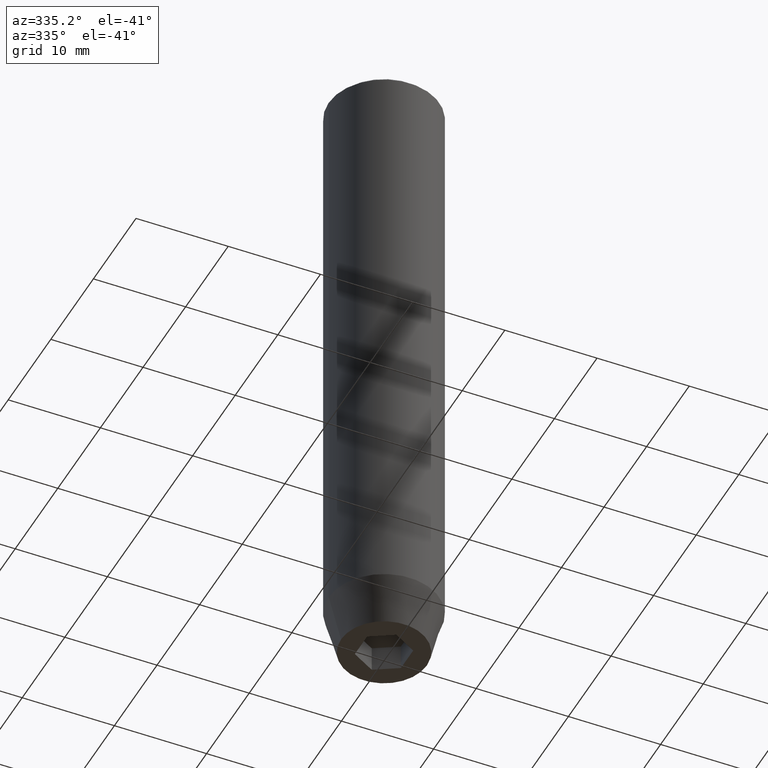
[diagram: clean part render]
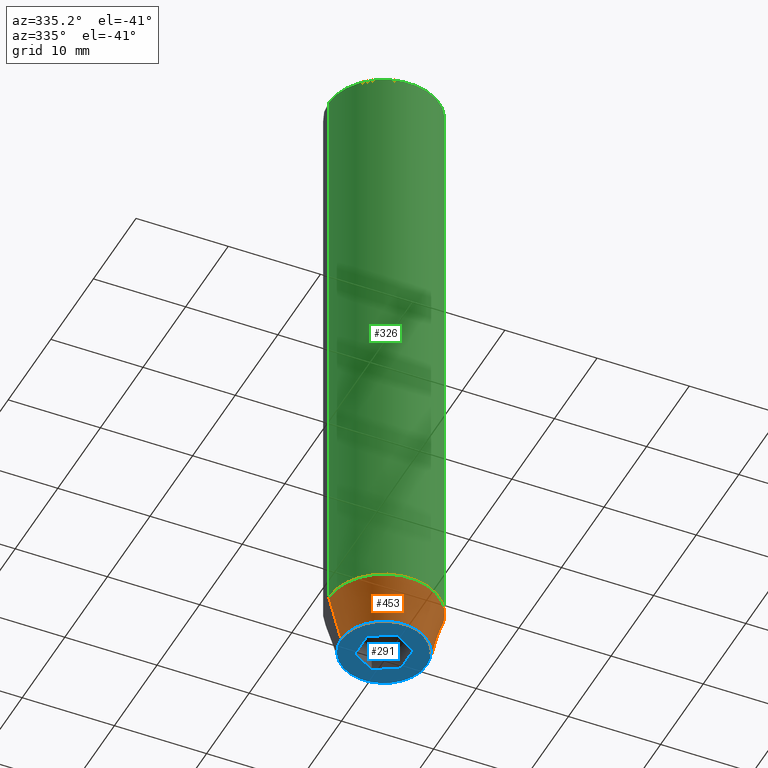
[diagram: same view with three faces highlighted in distinct colors, each labeled with its STEP entity id]
A machine part, auxiliary view with three faces highlighted in distinct colors.
Their STEP definitions:

[orange] entity #453 — the highlighted conical surface has half-angle 15 deg.
#10 = ORIENTED_EDGE ( 'NONE', *, *, #444, .F. ) ;
#12 = CIRCLE ( 'NONE', #198, 4.660254037844381081 ) ;
#24 = VECTOR ( 'NONE', #531, 1000.000000000000114 ) ;
#28 = VERTEX_POINT ( 'NONE', #214 ) ;
#32 = CARTESIAN_POINT ( 'NONE',  ( 6.000000000000000000, 0.000000000000000000, -65.00000000000000000 ) ) ;
#37 = DIRECTION ( 'NONE',  ( -0.000000000000000000, -0.000000000000000000, 1.000000000000000000 ) ) ;
#80 = CARTESIAN_POINT ( 'NONE',  ( 0.000000000000000000, 0.000000000000000000, -70.00000000000000000 ) ) ;
#81 = VECTOR ( 'NONE', #473, 1000.000000000000114 ) ;
#85 = LINE ( 'NONE', #32, #24 ) ;
#92 = VERTEX_POINT ( 'NONE', #522 ) ;
#100 = LINE ( 'NONE', #562, #81 ) ;
#108 = EDGE_LOOP ( 'NONE', ( #10, #252, #503, #455 ) ) ;
#112 = VERTEX_POINT ( 'NONE', #174 ) ;
#174 = CARTESIAN_POINT ( 'NONE',  ( 4.660254037844381081, 0.000000000000000000, -70.00000000000000000 ) ) ;
#194 = EDGE_CURVE ( 'NONE', #340, #28, #311, .T. ) ;
#198 = AXIS2_PLACEMENT_3D ( 'NONE', #80, #263, #220 ) ;
#213 = EDGE_CURVE ( 'NONE', #92, #112, #12, .T. ) ;
#214 = CARTESIAN_POINT ( 'NONE',  ( 6.000000000000000000, 0.000000000000000000, -65.00000000000000000 ) ) ;
#220 = DIRECTION ( 'NONE',  ( 1.000000000000000000, 0.000000000000000000, 0.000000000000000000 ) ) ;
#247 = EDGE_CURVE ( 'NONE', #112, #28, #85, .T. ) ;
#252 = ORIENTED_EDGE ( 'NONE', *, *, #213, .T. ) ;
#263 = DIRECTION ( 'NONE',  ( -0.000000000000000000, -0.000000000000000000, 1.000000000000000000 ) ) ;
#273 = AXIS2_PLACEMENT_3D ( 'NONE', #431, #480, #387 ) ;
#311 = CIRCLE ( 'NONE', #331, 6.000000000000000000 ) ;
#331 = AXIS2_PLACEMENT_3D ( 'NONE', #489, #37, #445 ) ;
#332 = CARTESIAN_POINT ( 'NONE',  ( -6.000000000000000000, 7.347880794884119736E-16, -65.00000000000000000 ) ) ;
#338 = FACE_OUTER_BOUND ( 'NONE', #108, .T. ) ;
#340 = VERTEX_POINT ( 'NONE', #332 ) ;
#387 = DIRECTION ( 'NONE',  ( 1.000000000000000000, 0.000000000000000000, 0.000000000000000000 ) ) ;
#431 = CARTESIAN_POINT ( 'NONE',  ( 0.000000000000000000, 0.000000000000000000, -65.00000000000000000 ) ) ;
#444 = EDGE_CURVE ( 'NONE', #92, #340, #100, .T. ) ;
#445 = DIRECTION ( 'NONE',  ( 1.000000000000000000, 0.000000000000000000, 0.000000000000000000 ) ) ;
#453 = ADVANCED_FACE ( 'NONE', ( #338 ), #547, .T. ) ;
#455 = ORIENTED_EDGE ( 'NONE', *, *, #194, .F. ) ;
#473 = DIRECTION ( 'NONE',  ( -0.2588190451025214611, 3.169619151431774186E-17, 0.9659258262890679791 ) ) ;
#480 = DIRECTION ( 'NONE',  ( -0.000000000000000000, -0.000000000000000000, 1.000000000000000000 ) ) ;
#489 = CARTESIAN_POINT ( 'NONE',  ( 0.000000000000000000, 0.000000000000000000, -65.00000000000000000 ) ) ;
#503 = ORIENTED_EDGE ( 'NONE', *, *, #247, .T. ) ;
#522 = CARTESIAN_POINT ( 'NONE',  ( -4.660254037844381081, 6.527522992771884330E-16, -70.00000000000000000 ) ) ;
#531 = DIRECTION ( 'NONE',  ( 0.2588190451025214611, 0.000000000000000000, 0.9659258262890679791 ) ) ;
#547 = CONICAL_SURFACE ( 'NONE', #273, 6.000000000000000000, 0.2617993877991502405 ) ;
#562 = CARTESIAN_POINT ( 'NONE',  ( -6.000000000000000000, 7.347880794884119736E-16, -65.00000000000000000 ) ) ;

[blue] entity #291 — the highlighted planar face has unit normal (0, 0, -1).
#1 = LINE ( 'NONE', #462, #402 ) ;
#6 = EDGE_CURVE ( 'NONE', #112, #92, #149, .T. ) ;
#7 = PLANE ( 'NONE',  #36 ) ;
#12 = CIRCLE ( 'NONE', #198, 4.660254037844381081 ) ;
#13 = VERTEX_POINT ( 'NONE', #17 ) ;
#17 = CARTESIAN_POINT ( 'NONE',  ( -2.500000000000000444, -1.443375672974064328, -70.00000000000000000 ) ) ;
#22 = AXIS2_PLACEMENT_3D ( 'NONE', #339, #251, #110 ) ;
#27 = EDGE_CURVE ( 'NONE', #526, #13, #435, .T. ) ;
#36 = AXIS2_PLACEMENT_3D ( 'NONE', #58, #237, #272 ) ;
#44 = VECTOR ( 'NONE', #191, 1000.000000000000000 ) ;
#53 = VECTOR ( 'NONE', #142, 1000.000000000000000 ) ;
#58 = CARTESIAN_POINT ( 'NONE',  ( 0.000000000000000000, 4.660254037844381081, -70.00000000000000000 ) ) ;
#80 = CARTESIAN_POINT ( 'NONE',  ( 0.000000000000000000, 0.000000000000000000, -70.00000000000000000 ) ) ;
#90 = FACE_OUTER_BOUND ( 'NONE', #166, .T. ) ;
#92 = VERTEX_POINT ( 'NONE', #522 ) ;
#106 = VECTOR ( 'NONE', #216, 1000.000000000000000 ) ;
#110 = DIRECTION ( 'NONE',  ( 1.000000000000000000, 0.000000000000000000, 0.000000000000000000 ) ) ;
#112 = VERTEX_POINT ( 'NONE', #174 ) ;
#142 = DIRECTION ( 'NONE',  ( 0.8660254037844385966, 0.5000000000000001110, 0.000000000000000000 ) ) ;
#149 = CIRCLE ( 'NONE', #22, 4.660254037844381081 ) ;
#151 = CARTESIAN_POINT ( 'NONE',  ( -2.500000000000000444, 1.443375672974064772, -70.00000000000000000 ) ) ;
#166 = EDGE_LOOP ( 'NONE', ( #567, #564 ) ) ;
#174 = CARTESIAN_POINT ( 'NONE',  ( 4.660254037844381081, 0.000000000000000000, -70.00000000000000000 ) ) ;
#184 = ORIENTED_EDGE ( 'NONE', *, *, #355, .F. ) ;
#191 = DIRECTION ( 'NONE',  ( 0.000000000000000000, -1.000000000000000000, 0.000000000000000000 ) ) ;
#193 = CARTESIAN_POINT ( 'NONE',  ( -1.250000000000000444, 2.165063509461097269, -70.00000000000000000 ) ) ;
#198 = AXIS2_PLACEMENT_3D ( 'NONE', #80, #263, #220 ) ;
#199 = CARTESIAN_POINT ( 'NONE',  ( 1.249999999999999778, -2.165063509461096380, -70.00000000000000000 ) ) ;
#207 = VERTEX_POINT ( 'NONE', #266 ) ;
#211 = ORIENTED_EDGE ( 'NONE', *, *, #392, .F. ) ;
#213 = EDGE_CURVE ( 'NONE', #92, #112, #12, .T. ) ;
#216 = DIRECTION ( 'NONE',  ( 0.8660254037844385966, -0.5000000000000001110, 0.000000000000000000 ) ) ;
#220 = DIRECTION ( 'NONE',  ( 1.000000000000000000, 0.000000000000000000, 0.000000000000000000 ) ) ;
#224 = LINE ( 'NONE', #316, #106 ) ;
#226 = CARTESIAN_POINT ( 'NONE',  ( 2.500000000000000000, 1.443375672974064328, -70.00000000000000000 ) ) ;
#230 = EDGE_CURVE ( 'NONE', #207, #258, #224, .T. ) ;
#237 = DIRECTION ( 'NONE',  ( 0.000000000000000000, 0.000000000000000000, -1.000000000000000000 ) ) ;
#251 = DIRECTION ( 'NONE',  ( -0.000000000000000000, -0.000000000000000000, 1.000000000000000000 ) ) ;
#258 = VERTEX_POINT ( 'NONE', #226 ) ;
#263 = DIRECTION ( 'NONE',  ( -0.000000000000000000, -0.000000000000000000, 1.000000000000000000 ) ) ;
#266 = CARTESIAN_POINT ( 'NONE',  ( -2.168404344971008868E-16, 2.886751345948129543, -70.00000000000000000 ) ) ;
#271 = EDGE_CURVE ( 'NONE', #258, #554, #502, .T. ) ;
#272 = DIRECTION ( 'NONE',  ( -1.000000000000000000, 0.000000000000000000, -0.000000000000000000 ) ) ;
#277 = VERTEX_POINT ( 'NONE', #151 ) ;
#281 = FACE_BOUND ( 'NONE', #282, .T. ) ;
#282 = EDGE_LOOP ( 'NONE', ( #211, #184, #520, #343, #532, #287 ) ) ;
#286 = CARTESIAN_POINT ( 'NONE',  ( 2.500000000000000000, 0.000000000000000000, -70.00000000000000000 ) ) ;
#287 = ORIENTED_EDGE ( 'NONE', *, *, #230, .F. ) ;
#291 = ADVANCED_FACE ( 'NONE', ( #281, #90 ), #7, .T. ) ;
#316 = CARTESIAN_POINT ( 'NONE',  ( 1.250000000000000222, 2.165063509461096825, -70.00000000000000000 ) ) ;
#339 = CARTESIAN_POINT ( 'NONE',  ( 0.000000000000000000, 0.000000000000000000, -70.00000000000000000 ) ) ;
#343 = ORIENTED_EDGE ( 'NONE', *, *, #510, .F. ) ;
#355 = EDGE_CURVE ( 'NONE', #13, #277, #1, .T. ) ;
#382 = CARTESIAN_POINT ( 'NONE',  ( 0.000000000000000000, -2.886751345948128211, -70.00000000000000000 ) ) ;
#392 = EDGE_CURVE ( 'NONE', #277, #207, #545, .T. ) ;
#402 = VECTOR ( 'NONE', #548, 1000.000000000000000 ) ;
#426 = VECTOR ( 'NONE', #521, 999.9999999999998863 ) ;
#435 = LINE ( 'NONE', #518, #437 ) ;
#437 = VECTOR ( 'NONE', #556, 1000.000000000000114 ) ;
#462 = CARTESIAN_POINT ( 'NONE',  ( -2.500000000000000444, 0.000000000000000000, -70.00000000000000000 ) ) ;
#478 = LINE ( 'NONE', #199, #426 ) ;
#502 = LINE ( 'NONE', #286, #44 ) ;
#510 = EDGE_CURVE ( 'NONE', #554, #526, #478, .T. ) ;
#518 = CARTESIAN_POINT ( 'NONE',  ( -1.249999999999999556, -2.165063509461096825, -70.00000000000000000 ) ) ;
#520 = ORIENTED_EDGE ( 'NONE', *, *, #27, .F. ) ;
#521 = DIRECTION ( 'NONE',  ( -0.8660254037844387076, -0.5000000000000001110, 0.000000000000000000 ) ) ;
#522 = CARTESIAN_POINT ( 'NONE',  ( -4.660254037844381081, 6.527522992771884330E-16, -70.00000000000000000 ) ) ;
#526 = VERTEX_POINT ( 'NONE', #382 ) ;
#532 = ORIENTED_EDGE ( 'NONE', *, *, #271, .F. ) ;
#545 = LINE ( 'NONE', #193, #53 ) ;
#548 = DIRECTION ( 'NONE',  ( 0.000000000000000000, 1.000000000000000000, 0.000000000000000000 ) ) ;
#554 = VERTEX_POINT ( 'NONE', #555 ) ;
#555 = CARTESIAN_POINT ( 'NONE',  ( 2.500000000000000000, -1.443375672974064106, -70.00000000000000000 ) ) ;
#556 = DIRECTION ( 'NONE',  ( -0.8660254037844387076, 0.4999999999999998890, 0.000000000000000000 ) ) ;
#564 = ORIENTED_EDGE ( 'NONE', *, *, #213, .F. ) ;
#567 = ORIENTED_EDGE ( 'NONE', *, *, #6, .F. ) ;

[green] entity #326 — the highlighted cylindrical surface (partial cylindrical patch) has radius 6 mm, axis along (-0, -0, 1).
#28 = VERTEX_POINT ( 'NONE', #214 ) ;
#37 = DIRECTION ( 'NONE',  ( -0.000000000000000000, -0.000000000000000000, 1.000000000000000000 ) ) ;
#48 = ORIENTED_EDGE ( 'NONE', *, *, #409, .T. ) ;
#49 = LINE ( 'NONE', #234, #217 ) ;
#50 = ORIENTED_EDGE ( 'NONE', *, *, #301, .F. ) ;
#54 = CYLINDRICAL_SURFACE ( 'NONE', #572, 6.000000000000000000 ) ;
#61 = VERTEX_POINT ( 'NONE', #481 ) ;
#93 = DIRECTION ( 'NONE',  ( -0.000000000000000000, -0.000000000000000000, 1.000000000000000000 ) ) ;
#138 = EDGE_LOOP ( 'NONE', ( #50, #145, #48, #469 ) ) ;
#145 = ORIENTED_EDGE ( 'NONE', *, *, #194, .T. ) ;
#152 = VERTEX_POINT ( 'NONE', #170 ) ;
#170 = CARTESIAN_POINT ( 'NONE',  ( 6.000000000000000000, 0.000000000000000000, -0.5000000000000099920 ) ) ;
#183 = CARTESIAN_POINT ( 'NONE',  ( -6.000000000000000000, 7.347880794884119736E-16, 0.000000000000000000 ) ) ;
#186 = AXIS2_PLACEMENT_3D ( 'NONE', #417, #279, #413 ) ;
#194 = EDGE_CURVE ( 'NONE', #340, #28, #311, .T. ) ;
#214 = CARTESIAN_POINT ( 'NONE',  ( 6.000000000000000000, 0.000000000000000000, -65.00000000000000000 ) ) ;
#217 = VECTOR ( 'NONE', #500, 1000.000000000000000 ) ;
#229 = DIRECTION ( 'NONE',  ( -0.000000000000000000, -0.000000000000000000, 1.000000000000000000 ) ) ;
#232 = LINE ( 'NONE', #183, #539 ) ;
#234 = CARTESIAN_POINT ( 'NONE',  ( 6.000000000000000000, 0.000000000000000000, 0.000000000000000000 ) ) ;
#244 = CIRCLE ( 'NONE', #186, 6.000000000000000000 ) ;
#279 = DIRECTION ( 'NONE',  ( 0.000000000000000000, 0.000000000000000000, -1.000000000000000000 ) ) ;
#301 = EDGE_CURVE ( 'NONE', #340, #61, #232, .T. ) ;
#307 = EDGE_CURVE ( 'NONE', #152, #61, #244, .T. ) ;
#311 = CIRCLE ( 'NONE', #331, 6.000000000000000000 ) ;
#326 = ADVANCED_FACE ( 'NONE', ( #505 ), #54, .T. ) ;
#331 = AXIS2_PLACEMENT_3D ( 'NONE', #489, #37, #445 ) ;
#332 = CARTESIAN_POINT ( 'NONE',  ( -6.000000000000000000, 7.347880794884119736E-16, -65.00000000000000000 ) ) ;
#340 = VERTEX_POINT ( 'NONE', #332 ) ;
#409 = EDGE_CURVE ( 'NONE', #28, #152, #49, .T. ) ;
#413 = DIRECTION ( 'NONE',  ( 1.000000000000000000, 0.000000000000000000, 0.000000000000000000 ) ) ;
#417 = CARTESIAN_POINT ( 'NONE',  ( 0.000000000000000000, 0.000000000000000000, -0.5000000000000099920 ) ) ;
#445 = DIRECTION ( 'NONE',  ( 1.000000000000000000, 0.000000000000000000, 0.000000000000000000 ) ) ;
#459 = DIRECTION ( 'NONE',  ( 1.000000000000000000, 0.000000000000000000, 0.000000000000000000 ) ) ;
#469 = ORIENTED_EDGE ( 'NONE', *, *, #307, .T. ) ;
#481 = CARTESIAN_POINT ( 'NONE',  ( -6.000000000000000000, 7.347880794884119736E-16, -0.5000000000000099920 ) ) ;
#489 = CARTESIAN_POINT ( 'NONE',  ( 0.000000000000000000, 0.000000000000000000, -65.00000000000000000 ) ) ;
#500 = DIRECTION ( 'NONE',  ( -0.000000000000000000, -0.000000000000000000, 1.000000000000000000 ) ) ;
#505 = FACE_OUTER_BOUND ( 'NONE', #138, .T. ) ;
#539 = VECTOR ( 'NONE', #229, 1000.000000000000000 ) ;
#572 = AXIS2_PLACEMENT_3D ( 'NONE', #587, #93, #459 ) ;
#587 = CARTESIAN_POINT ( 'NONE',  ( 0.000000000000000000, 0.000000000000000000, 0.000000000000000000 ) ) ;